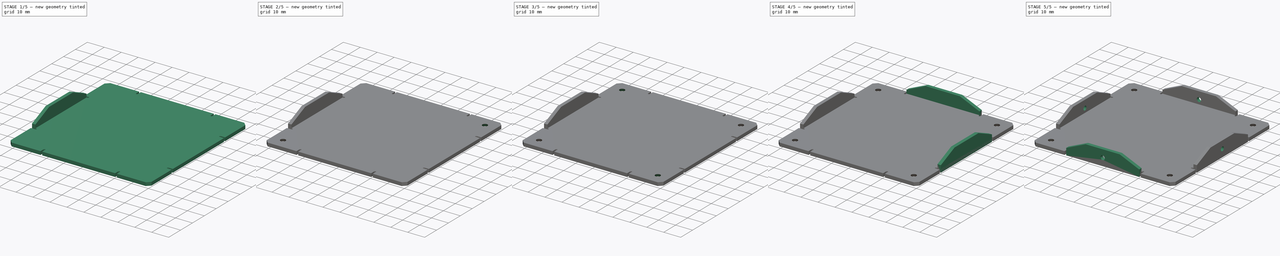
[diagram: build sequence overview — one tinted view per stage of 5, left to right]
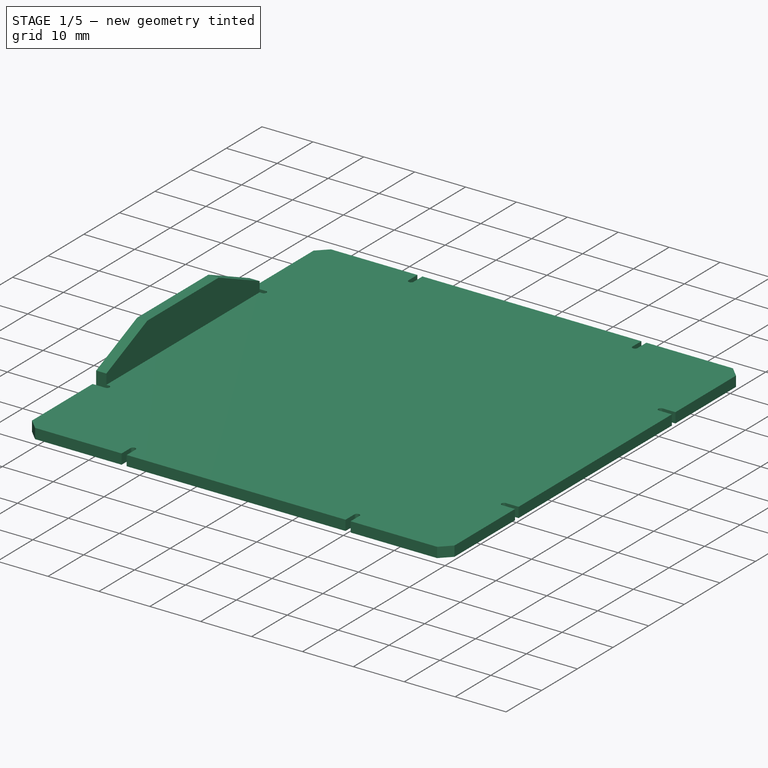
[diagram: stage 1 of 5 — iso view after this stage's code; geometry added in this stage tinted green]
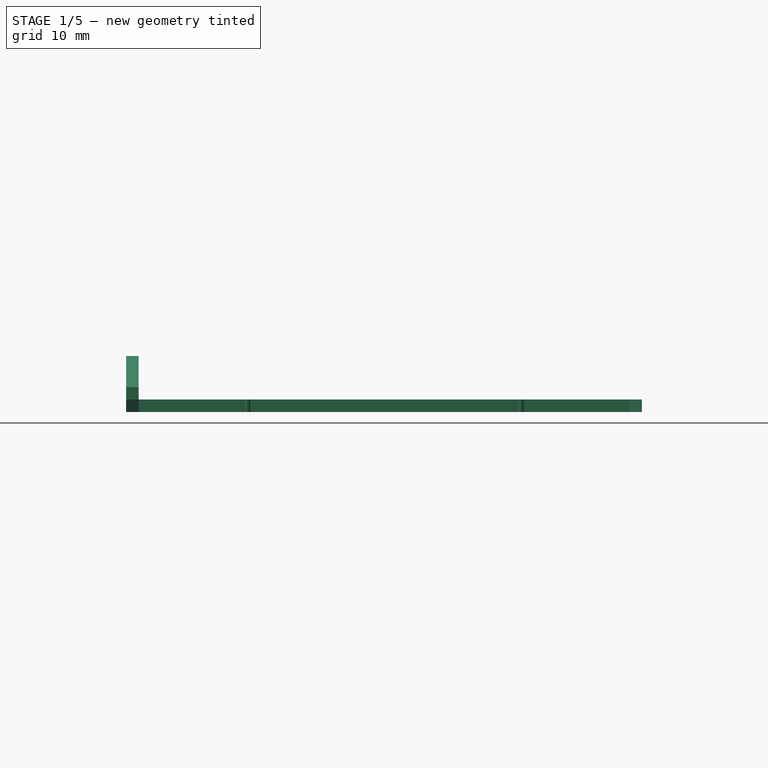
[diagram: stage 1 of 5 — front view after this stage's code; geometry added in this stage tinted green]
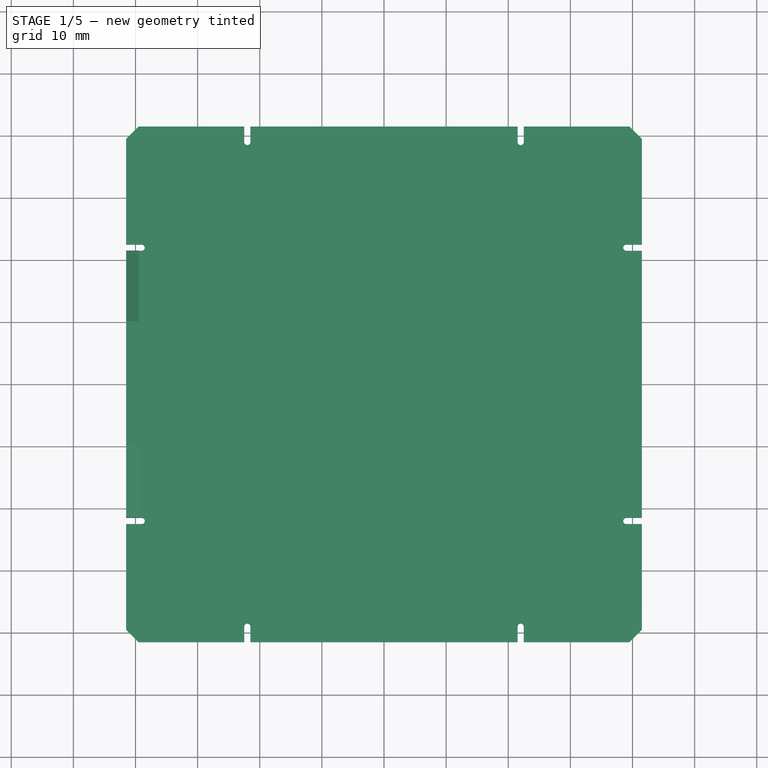
[diagram: stage 1 of 5 — top view after this stage's code; geometry added in this stage tinted green]
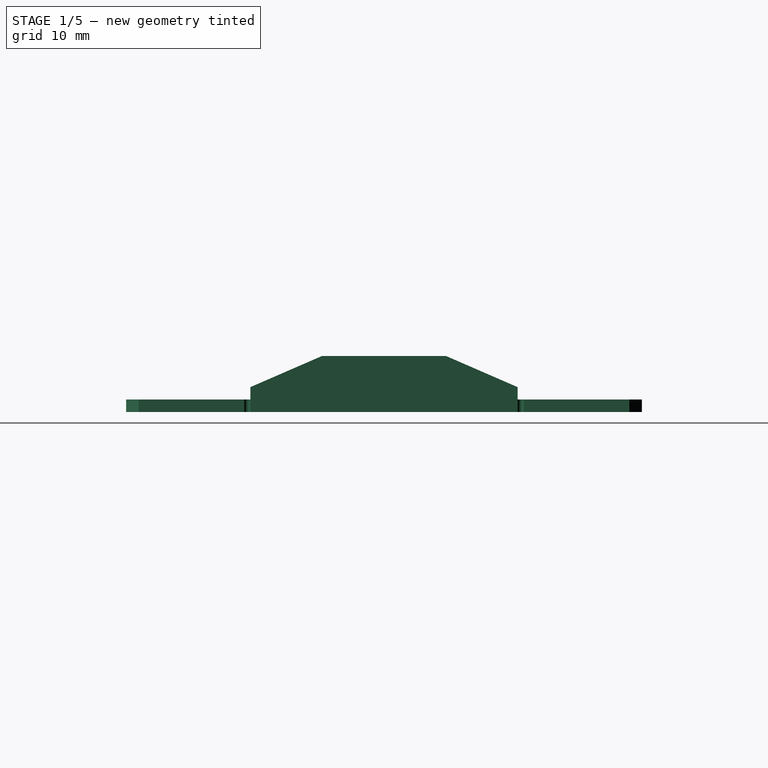
[diagram: stage 1 of 5 — right view after this stage's code; geometry added in this stage tinted green]
FCSTD DOCUMENT  (FreeCAD 0.16R6710 (Git))
Label: tapa
License: All rights reserved
LicenseURL: http://en.wikipedia.org/wiki/All_rights_reserved
objects: Sketcher::SketchObject×15, PartDesign::Pad×5, Part::Loft×4, Part::Cut×4, Part::MultiFuse×2, PartDesign::Pocket×2, PartDesign::Chamfer×1
note: 40 computed .brp shape members not serialized (recipe doc carries the construction recipe); baked Part::Feature solids carry a one-line shape summary decoded from their .brp

FEATURE [Sketcher::SketchObject] Sketch
  sketch-geometry (36):
    g0: LineSegment StartX=21.5 StartY=-41.5 StartZ=0 EndX=-21.5 EndY=-41.5 EndZ=0
    g1: LineSegment StartX=-41.5 StartY=-41.5 StartZ=0 EndX=-41.5 EndY=-22.5 EndZ=0
    g2: ArcOfCircle CenterX=-22 CenterY=-39 CenterZ=0 NormalX=0 NormalY=0 NormalZ=1 Radius=0.5 StartAngle=6.28319 EndAngle=9.42478
    g3: LineSegment StartX=-21.5 StartY=-39 StartZ=0 EndX=-21.5 EndY=-41.5 EndZ=0
    g4: LineSegment StartX=-22.5 StartY=-41.5 StartZ=0 EndX=-22.5 EndY=-39 EndZ=0
    g5: LineSegment StartX=-22.5 StartY=-41.5 StartZ=0 EndX=-41.5 EndY=-41.5 EndZ=0
    g6: ArcOfCircle CenterX=-39 CenterY=-22 CenterZ=0 NormalX=0 NormalY=0 NormalZ=1 Radius=0.5 StartAngle=4.71239 EndAngle=7.85398
    g7: LineSegment StartX=-41.5 StartY=-21.5 StartZ=0 EndX=-39 EndY=-21.5 EndZ=0
    g8: LineSegment StartX=-39 StartY=-22.5 StartZ=0 EndX=-41.5 EndY=-22.5 EndZ=0
    g9: LineSegment StartX=-41.5 StartY=-21.5 StartZ=0 EndX=-41.5 EndY=21.5 EndZ=0
    g10: ArcOfCircle CenterX=22 CenterY=-39 CenterZ=0 NormalX=0 NormalY=0 NormalZ=1 Radius=0.5 StartAngle=6.28319 EndAngle=9.42478
    g11: LineSegment StartX=21.5 StartY=-39 StartZ=0 EndX=21.5 EndY=-41.5 EndZ=0
    g12: LineSegment StartX=22.5 StartY=-41.5 StartZ=0 EndX=22.5 EndY=-39 EndZ=0
    g13: LineSegment StartX=22.5 StartY=-41.5 StartZ=0 EndX=41.5 EndY=-41.5 EndZ=0
    g14: LineSegment StartX=-41.5 StartY=41.5 StartZ=0 EndX=-41.5 EndY=22.5 EndZ=0
    g15: ArcOfCircle CenterX=-39 CenterY=22 CenterZ=0 NormalX=0 NormalY=0 NormalZ=1 Radius=0.5 StartAngle=4.71239 EndAngle=7.85399
    g16: LineSegment StartX=-41.5 StartY=21.5 StartZ=0 EndX=-39 EndY=21.5 EndZ=0
    g17: LineSegment StartX=-39 StartY=22.5 StartZ=0 EndX=-41.5 EndY=22.5 EndZ=0
    g18: LineSegment StartX=21.5 StartY=41.5 StartZ=0 EndX=-21.5 EndY=41.5 EndZ=0
    g19: ArcOfCircle CenterX=-22 CenterY=39 CenterZ=0 NormalX=0 NormalY=0 NormalZ=1 Radius=0.5 StartAngle=3.14159 EndAngle=6.28319
    g20: LineSegment StartX=-21.5 StartY=39 StartZ=0 EndX=-21.5 EndY=41.5 EndZ=0
    g21: LineSegment StartX=-22.5 StartY=41.5 StartZ=0 EndX=-22.5 EndY=39 EndZ=0
    g22: LineSegment StartX=-22.5 StartY=41.5 StartZ=0 EndX=-41.5 EndY=41.5 EndZ=0
    g23: ArcOfCircle CenterX=22 CenterY=39 CenterZ=0 NormalX=0 NormalY=0 NormalZ=1 Radius=0.5 StartAngle=3.14159 EndAngle=6.28319
    g24: LineSegment StartX=21.5 StartY=39 StartZ=0 EndX=21.5 EndY=41.5 EndZ=0
    g25: LineSegment StartX=22.5 StartY=41.5 StartZ=0 EndX=22.5 EndY=39 EndZ=0
    g26: LineSegment StartX=22.5 StartY=41.5 StartZ=0 EndX=41.5 EndY=41.5 EndZ=0
    g27: LineSegment StartX=41.5 StartY=-41.5 StartZ=0 EndX=41.5 EndY=-22.5 EndZ=0
    g28: ArcOfCircle CenterX=39 CenterY=-22 CenterZ=0 NormalX=0 NormalY=0 NormalZ=1 Radius=0.5 StartAngle=1.5708 EndAngle=4.71238
    g29: LineSegment StartX=41.5 StartY=-21.5 StartZ=0 EndX=39 EndY=-21.5 EndZ=0
    g30: LineSegment StartX=39 StartY=-22.5 StartZ=0 EndX=41.5 EndY=-22.5 EndZ=0
    g31: LineSegment StartX=41.5 StartY=-21.5 StartZ=0 EndX=41.5 EndY=21.5 EndZ=0
    g32: LineSegment StartX=41.5 StartY=41.5 StartZ=0 EndX=41.5 EndY=22.5 EndZ=0
    g33: ArcOfCircle CenterX=39 CenterY=22 CenterZ=0 NormalX=0 NormalY=0 NormalZ=1 Radius=0.5 StartAngle=1.57079 EndAngle=4.7124
    g34: LineSegment StartX=41.5 StartY=21.5 StartZ=0 EndX=39 EndY=21.5 EndZ=0
    g35: LineSegment StartX=39 StartY=22.5 StartZ=0 EndX=41.5 EndY=22.5 EndZ=0
  constraints (110):
    c: Horizontal(g0)
    c: Vertical(g1)
    c: Vertical(g3)
    c: Vertical(g4)
    c: Radius(g2) = 0.5
    c: DistanceY(g3,g3) = 2.5
    c: DistanceY(g4,g4) = 2.5
    c: Horizontal(g7)
    c: Horizontal(g8)
    c: Radius(g6) = 0.5
    c: DistanceX(g8,g8) = 2.5
    c: DistanceX(g7,g7) = 2.5
    c: Coincident(g6,g7)
    c: Coincident(g6,g8)
    c: Vertical(g11)
    c: Vertical(g12)
    c: Radius(g10) = 0.5
    c: Vertical(g14)
    c: Horizontal(g16)
    c: Horizontal(g17)
    c: Radius(g15) = 0.5
    c: Coincident(g15,g16)
    c: Coincident(g15,g17)
    c: DistanceX(g5,g5) = 19
    c: DistanceX(g4,g0) = 1
    c: DistanceX(g13,g13) = 19
    c: DistanceX(g11,g12) = 1
    c: Coincident(g0,g11)
    c: DistanceX(g0,g0) = 43
    c: DistanceY(g1,g1) = 19
    c: Coincident(g1,g8)
    c: Coincident(g7,g9)
    c: DistanceY(g1,g7) = 1
    c: DistanceY(g14,g14) = 19
    c: DistanceY(g16,g14) = 1
    c: DistanceX(g17,g17) = 2.5
    c: DistanceX(g16,g16) = 2.5
    c: Coincident(g14,g17)
    c: Coincident(g16,g9)
    c: Vertical(g9)
    c: Horizontal(g5)
    c: Horizontal(g13)
    c: DistanceY(g9,g9) = 43
    c: DistanceY(g12,g12) = 2.5
    c: DistanceY(g11,g11) = 2.5
    c: Coincident(g4,g5)
    c: Coincident(g12,g13)
    c: Horizontal(g18)
    c: Vertical(g20)
    c: Vertical(g21)
    c: Radius(g19) = 0.5
    c: Vertical(g24)
    c: Vertical(g25)
    c: Radius(g23) = 0.5
    c: Coincident(g18,g24)
    c: Horizontal(g22)
    c: Horizontal(g26)
    c: Coincident(g21,g22)
    c: Coincident(g25,g26)
    c: DistanceX(g22,g22) = 19
    c: Coincident(g18,g20)
    c: DistanceX(g21,g18) = 1
    c: DistanceX(g26,g26) = 19
    c: DistanceX(g18,g25) = 1
    c: DistanceX(g18,g18) = 43
    c: Equal(g25,g24)
    c: Coincident(g23,g25)
    c: Coincident(g23,g24)
    c: DistanceY(g25,g25) = 2.5
    c: Equal(g20,g21)
    c: DistanceY(g20,g20) = 2.5
    c: Coincident(g19,g20)
    c: Coincident(g19,g21)
    c: Vertical(g27)
    c: Horizontal(g29)
    c: Horizontal(g30)
    c: Radius(g28) = 0.5
    c: Coincident(g28,g29)
    c: Coincident(g28,g30)
    c: Vertical(g32)
    c: Horizontal(g34)
    c: Horizontal(g35)
    c: Radius(g33) = 0.5
    c: Coincident(g33,g34)
    c: Coincident(g33,g35)
    c: Coincident(g27,g30)
    c: Coincident(g29,g31)
    c: Coincident(g32,g35)
    c: Coincident(g34,g31)
    c: Vertical(g31)
    c: DistanceY(g27,g27) = 19
    c: DistanceY(g27,g29) = 1
    c: Equal(g29,g30)
    c: DistanceX(g30,g30) = 2.5
    c: DistanceY(g31,g31) = 43
    c: DistanceY(g32,g32) = 19
    c: DistanceY(g31,g32) = 1
    c: Equal(g34,g35)
    c: DistanceX(g34,g34) = 2.5
    c: Coincident(g2,g4)
    c: Coincident(g2,g3)
    c: Coincident(g1,g5)
    c: Coincident(g0,g3)
    c: Coincident(g14,g22)
    c: Coincident(g26,g32)
    c: Coincident(g13,g27)
    c: Coincident(g10,g11)
    c: Coincident(g10,g12)
    c: Symmetric(g9,g31,g-2)
    c: Symmetric(g0,g18,g-1)
FEATURE [PartDesign::Pad] Pad
  Length = 2
  Length2 = 100
  Sketch = -> Sketch
  Type = 0
FEATURE [PartDesign::Chamfer] Chamfer
  Base = -> Pad [Edge23,Edge50,Edge104,Edge77]
  Size = 2
FEATURE [Sketcher::SketchObject] Sketch001
  sketch-geometry (1):
    g0: Circle CenterX=-35 CenterY=-35 CenterZ=0 NormalX=0 NormalY=0 NormalZ=1 Radius=3
  constraints (1):
    c: Radius(g0) = 3
FEATURE [Sketcher::SketchObject] Sketch002
  Placement = pos=(0,0,2) rot=(0,0,1;0rad)
  sketch-geometry (1):
    g0: Circle CenterX=-35 CenterY=-35 CenterZ=0 NormalX=0 NormalY=0 NormalZ=1 Radius=1.5
  constraints (3):
    c: Radius(g0) = 1.5
    c: DistanceY(g0,g-1) = 35
    c: DistanceX(g0,g-1) = 35
FEATURE [Part::Loft] Loft
  Closed = false
  Ruled = true
  Sections = -> [Sketch001,Sketch002]
  Solid = true
FEATURE [PartDesign::Pad] Pad004
  Length = 2
  Length2 = 100
  Placement = pos=(-41.5,0,0) rot=(0.57735,0.57735,0.57735;2.0944rad)
  Sketch = -> Sketch012
  Type = 0
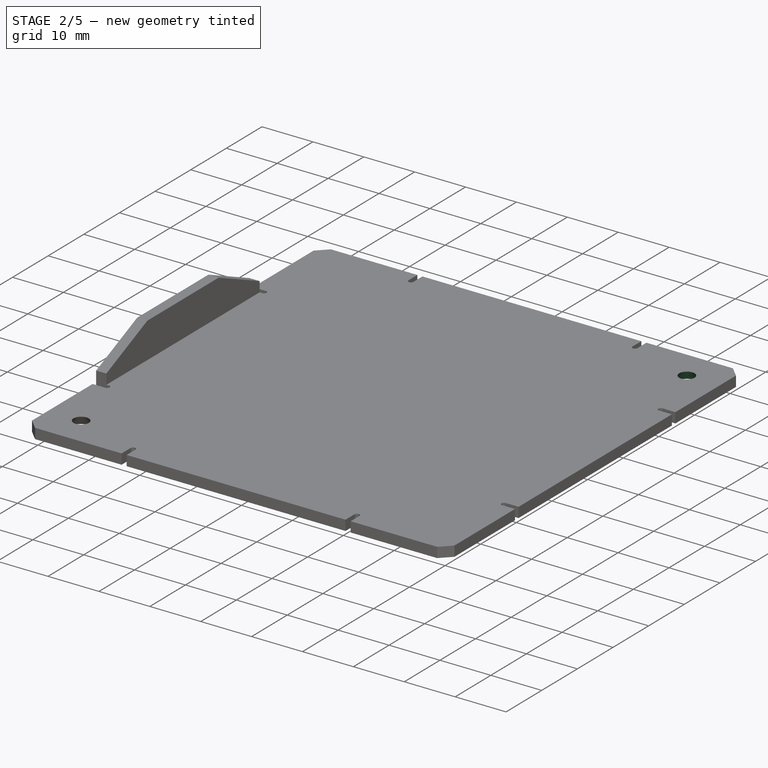
[diagram: stage 2 of 5 — iso view after this stage's code; geometry added in this stage tinted green]
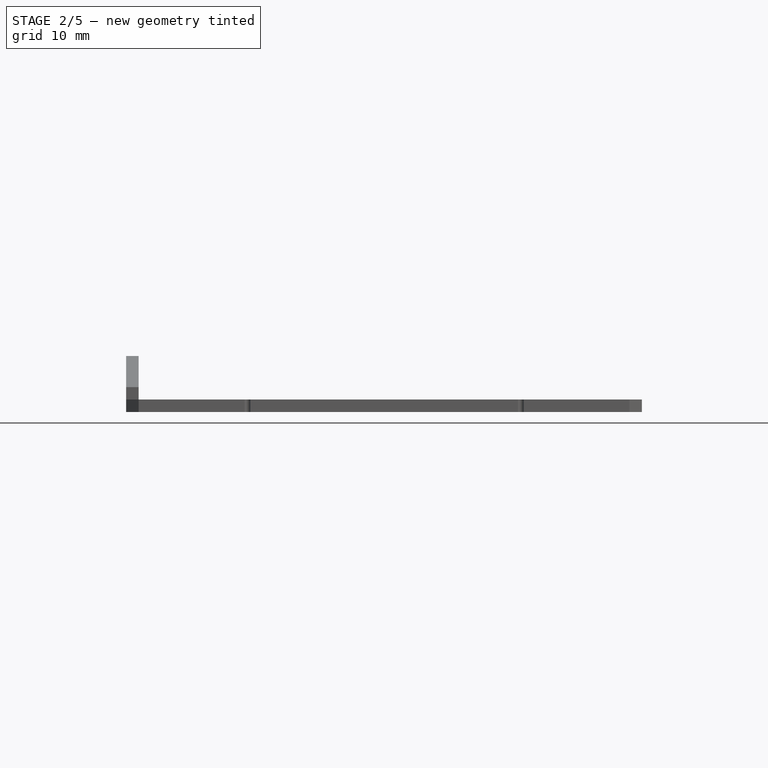
[diagram: stage 2 of 5 — front view after this stage's code; geometry added in this stage tinted green]
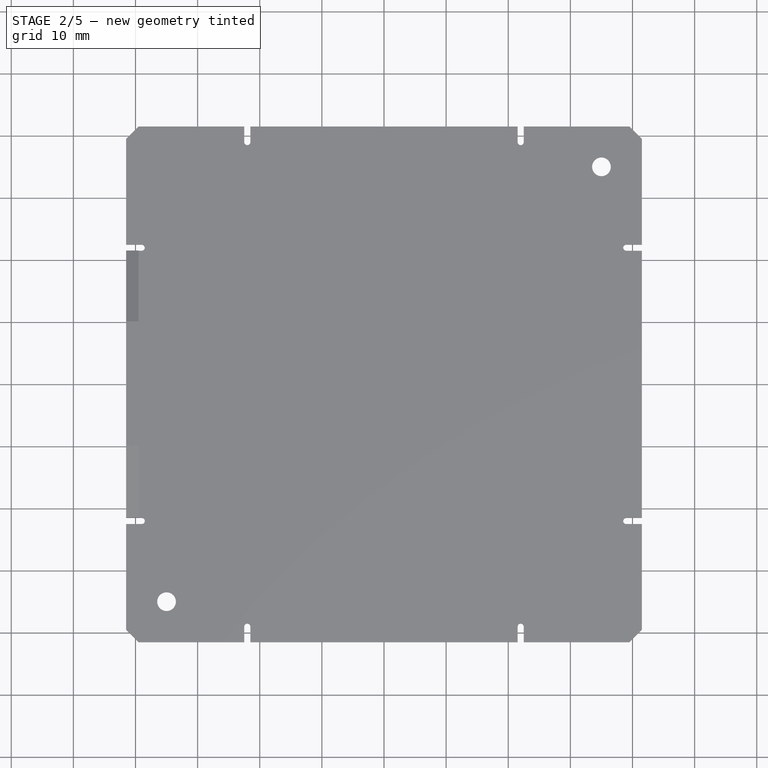
[diagram: stage 2 of 5 — top view after this stage's code; geometry added in this stage tinted green]
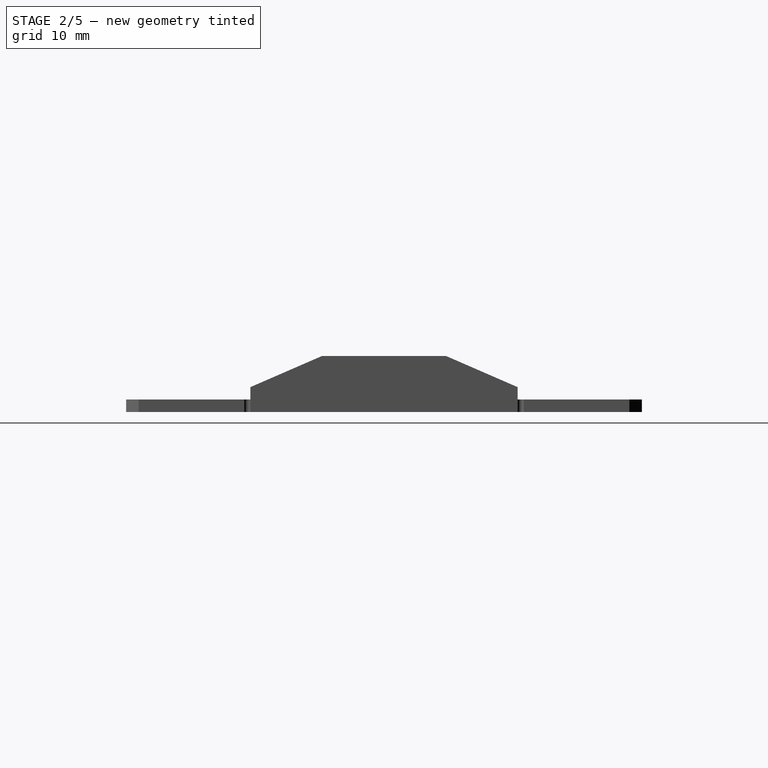
[diagram: stage 2 of 5 — right view after this stage's code; geometry added in this stage tinted green]
FEATURE [Sketcher::SketchObject] Sketch007
  sketch-geometry (1):
    g0: Circle CenterX=35 CenterY=35 CenterZ=0 NormalX=0 NormalY=0 NormalZ=1 Radius=3
  constraints (3):
    c: Radius(g0) = 3
    c: DistanceY(g-1,g0) = 35
    c: DistanceX(g-1,g0) = 35
FEATURE [Sketcher::SketchObject] Sketch008
  Placement = pos=(0,0,2) rot=(0,0,1;0rad)
  sketch-geometry (1):
    g0: Circle CenterX=35 CenterY=35 CenterZ=0 NormalX=0 NormalY=0 NormalZ=1 Radius=1.5
  constraints (3):
    c: Radius(g0) = 1.5
    c: DistanceX(g-1,g0) = 35
    c: DistanceY(g-1,g0) = 35
FEATURE [Part::Loft] Loft003
  Closed = false
  Ruled = true
  Sections = -> [Sketch007,Sketch008]
  Solid = true
FEATURE [Part::Cut] Cut
  Base = -> Chamfer
  Tool = -> Loft
FEATURE [Part::Cut] Cut001
  Base = -> Cut
  Tool = -> Loft003
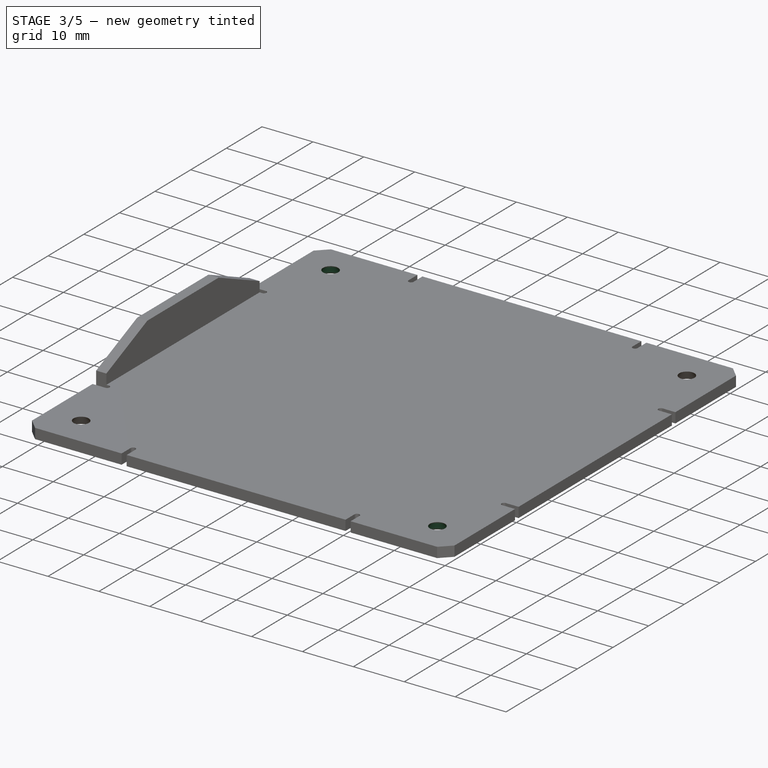
[diagram: stage 3 of 5 — iso view after this stage's code; geometry added in this stage tinted green]
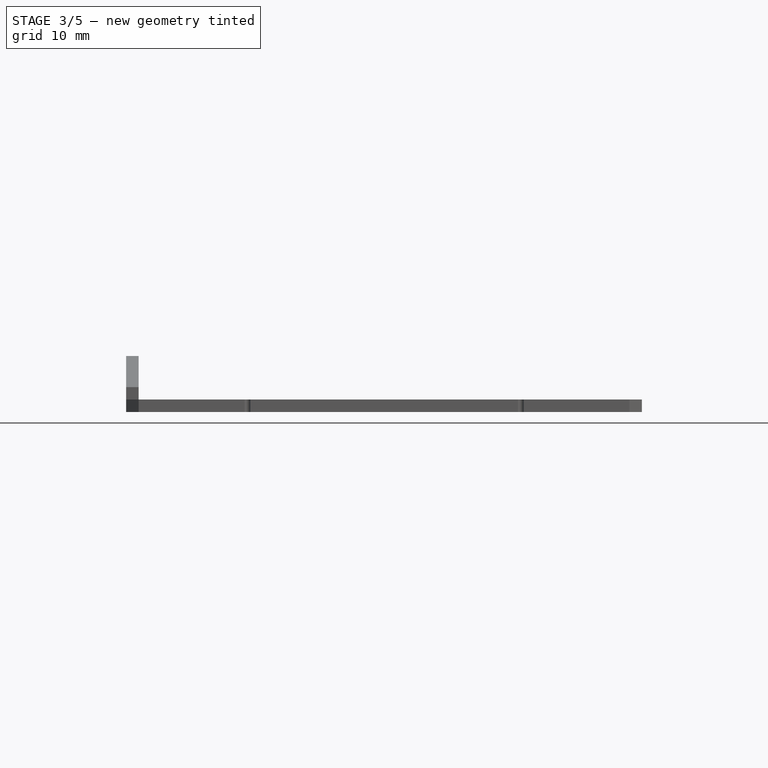
[diagram: stage 3 of 5 — front view after this stage's code; geometry added in this stage tinted green]
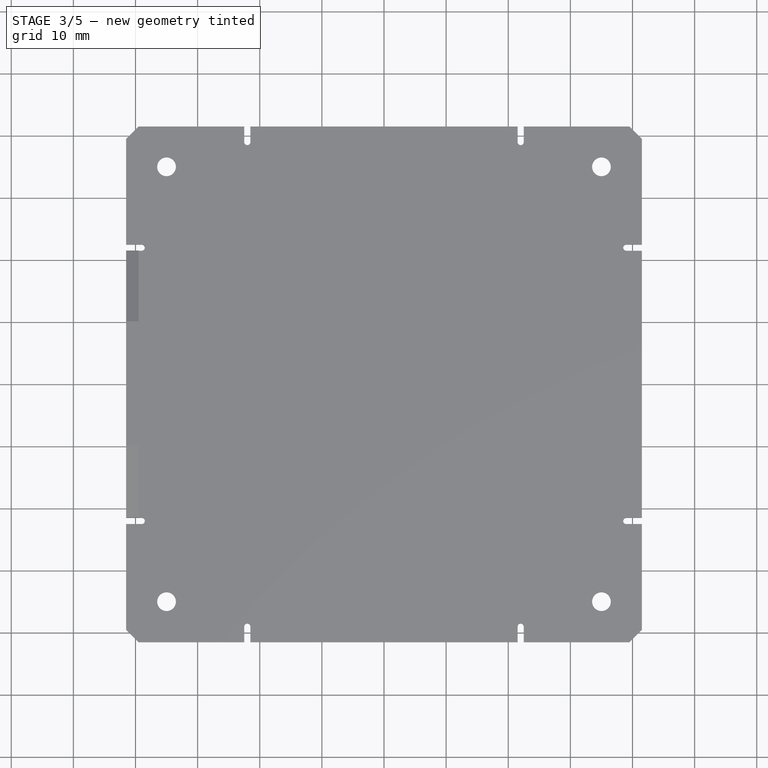
[diagram: stage 3 of 5 — top view after this stage's code; geometry added in this stage tinted green]
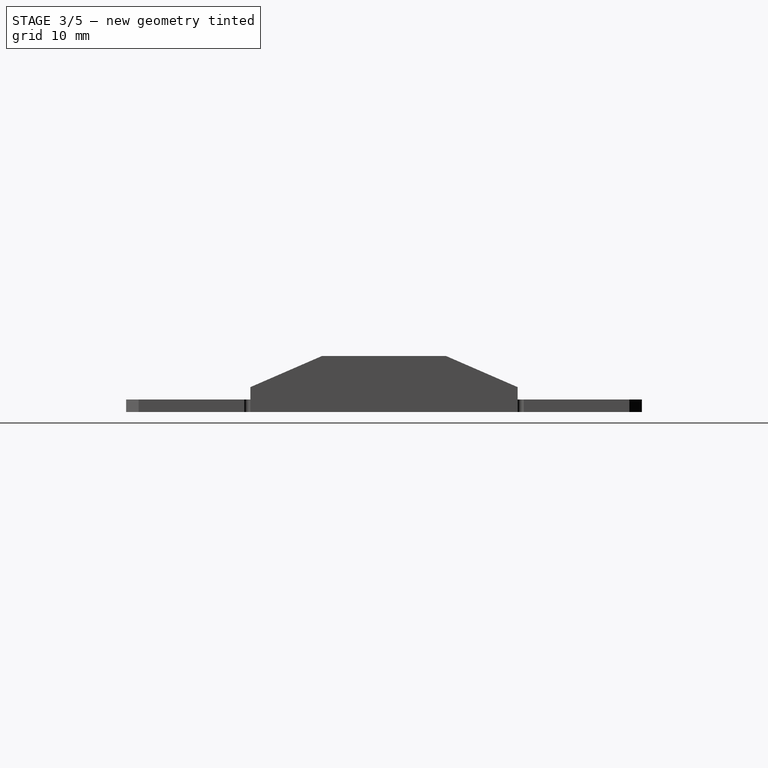
[diagram: stage 3 of 5 — right view after this stage's code; geometry added in this stage tinted green]
FEATURE [Sketcher::SketchObject] Sketch003
  sketch-geometry (1):
    g0: Circle CenterX=35 CenterY=-35 CenterZ=0 NormalX=0 NormalY=0 NormalZ=1 Radius=3
  constraints (3):
    c: Radius(g0) = 3
    c: DistanceX(g-1,g0) = 35
    c: DistanceY(g0,g-1) = 35
FEATURE [Sketcher::SketchObject] Sketch004
  Placement = pos=(0,0,2) rot=(0,0,1;0rad)
  sketch-geometry (1):
    g0: Circle CenterX=35 CenterY=-35 CenterZ=0 NormalX=0 NormalY=0 NormalZ=1 Radius=1.5
  constraints (3):
    c: Radius(g0) = 1.5
    c: DistanceX(g-1,g0) = 35
    c: DistanceY(g0,g-1) = 35
FEATURE [Part::Loft] Loft001
  Closed = false
  Ruled = true
  Sections = -> [Sketch003,Sketch004]
  Solid = true
FEATURE [Sketcher::SketchObject] Sketch005
  sketch-geometry (1):
    g0: Circle CenterX=-35 CenterY=35 CenterZ=0 NormalX=0 NormalY=0 NormalZ=1 Radius=3
  constraints (3):
    c: Radius(g0) = 3
    c: DistanceY(g-1,g0) = 35
    c: DistanceX(g0,g-1) = 35
FEATURE [Sketcher::SketchObject] Sketch006
  Placement = pos=(0,0,2) rot=(0,0,1;0rad)
  sketch-geometry (1):
    g0: Circle CenterX=-35 CenterY=35 CenterZ=0 NormalX=0 NormalY=0 NormalZ=1 Radius=1.5
  constraints (3):
    c: Radius(g0) = 1.5
    c: DistanceY(g-1,g0) = 35
    c: DistanceX(g0,g-1) = 35
FEATURE [Part::Loft] Loft002
  Closed = false
  Ruled = true
  Sections = -> [Sketch005,Sketch006]
  Solid = true
FEATURE [Part::Cut] Cut002
  Base = -> Cut001
  Tool = -> Loft002
FEATURE [Part::Cut] Cut003
  Base = -> Cut002
  Tool = -> Loft001
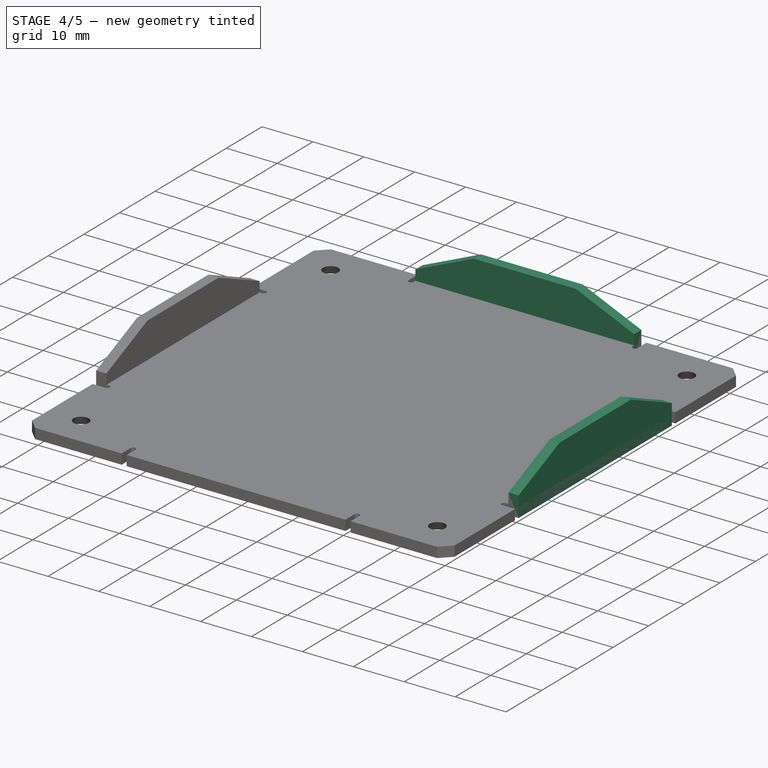
[diagram: stage 4 of 5 — iso view after this stage's code; geometry added in this stage tinted green]
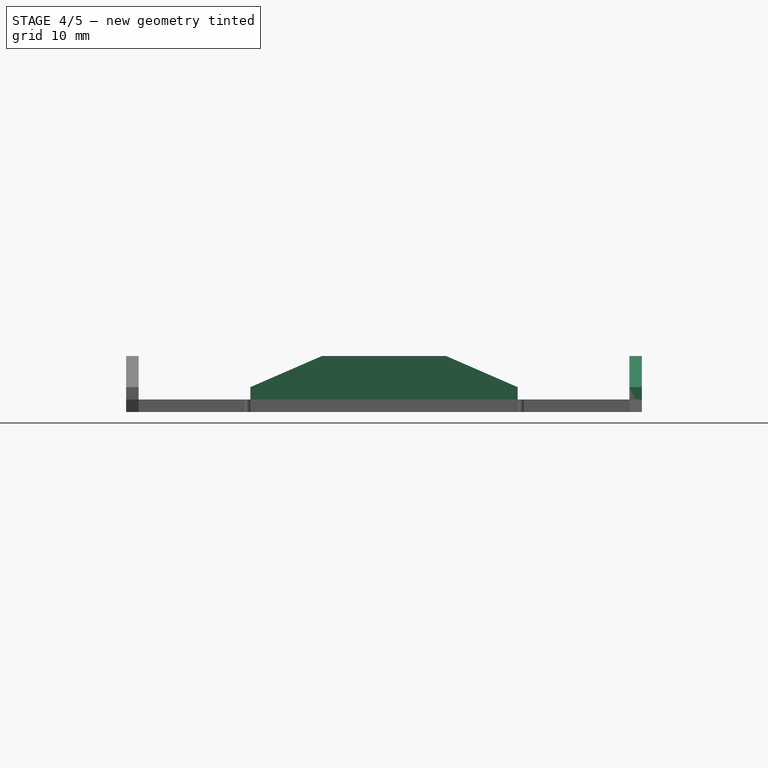
[diagram: stage 4 of 5 — front view after this stage's code; geometry added in this stage tinted green]
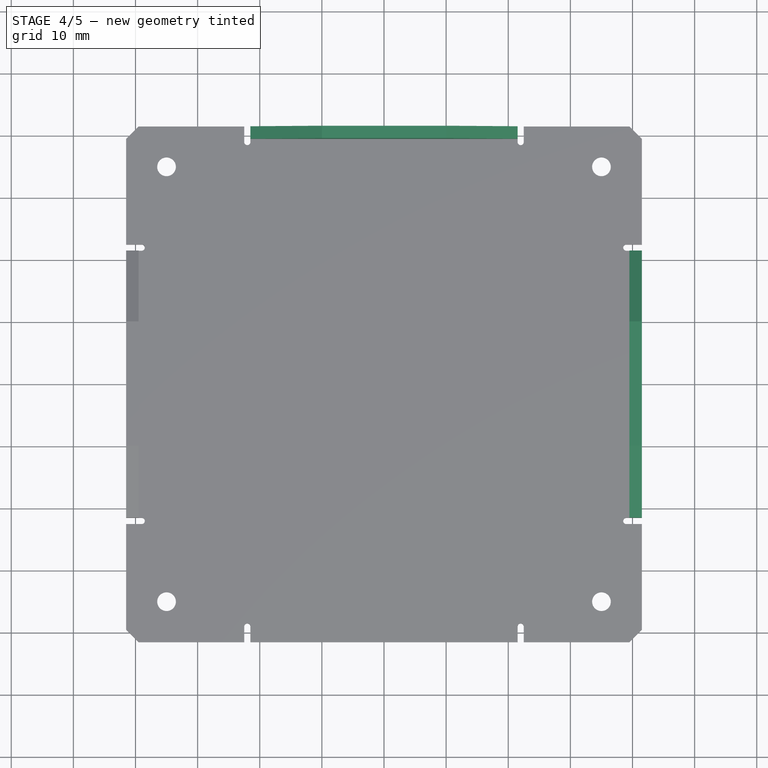
[diagram: stage 4 of 5 — top view after this stage's code; geometry added in this stage tinted green]
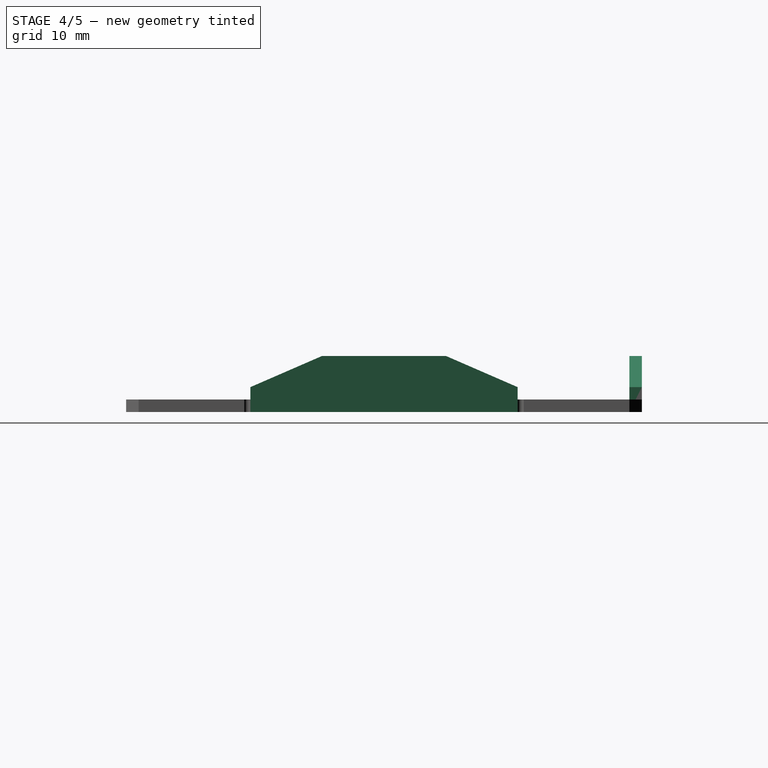
[diagram: stage 4 of 5 — right view after this stage's code; geometry added in this stage tinted green]
FEATURE [PartDesign::Pad] Pad002
  Length = 2
  Length2 = 100
  Placement = pos=(0,41.5,0) rot=(1,0,0;1.5708rad)
  Sketch = -> Sketch010
  Type = 0
FEATURE [Sketcher::SketchObject] Sketch011
  Placement = pos=(39.5,0,0) rot=(0.57735,0.57735,0.57735;2.0944rad)
  sketch-geometry (6):
    g0: LineSegment StartX=-21.5 StartY=0 StartZ=0 EndX=21.5 EndY=0 EndZ=0
    g1: LineSegment StartX=21.5 StartY=0 StartZ=0 EndX=21.5 EndY=4 EndZ=0
    g2: LineSegment StartX=21.5 StartY=4 StartZ=0 EndX=10 EndY=9 EndZ=0
    g3: LineSegment StartX=10 StartY=9 StartZ=0 EndX=-10 EndY=9 EndZ=0
    g4: LineSegment StartX=-10 StartY=9 StartZ=0 EndX=-21.5 EndY=4 EndZ=0
    g5: LineSegment StartX=-21.5 StartY=4 StartZ=0 EndX=-21.5 EndY=0 EndZ=0
  constraints (18):
    c: Horizontal(g0)
    c: Coincident(g0,g1)
    c: Vertical(g1)
    c: Coincident(g1,g2)
    c: Coincident(g2,g3)
    c: Horizontal(g3)
    c: Coincident(g3,g4)
    c: Coincident(g4,g5)
    c: Coincident(g5,g0)
    c: Vertical(g5)
    c: Equal(g1,g5)
    c: DistanceY(g1,g1) = 4
    c: Symmetric(g0,g0,g-2)
    c: Symmetric(g2,g3,g-2)
    c: DistanceY(g0,g2) = 9
    c: DistanceX(g-1,g2) = 10
    c: DistanceX(g-1,g0) = 21.5
    c: PointOnObject(g0,g-1)
FEATURE [Sketcher::SketchObject] Sketch012
  Placement = pos=(-41.5,0,0) rot=(0.57735,0.57735,0.57735;2.0944rad)
  sketch-geometry (6):
    g0: LineSegment StartX=-21.5 StartY=0 StartZ=0 EndX=21.5 EndY=0 EndZ=0
    g1: LineSegment StartX=21.5 StartY=0 StartZ=0 EndX=21.5 EndY=4 EndZ=0
    g2: LineSegment StartX=21.5 StartY=4 StartZ=0 EndX=10 EndY=9 EndZ=0
    g3: LineSegment StartX=10 StartY=9 StartZ=0 EndX=-10 EndY=9 EndZ=0
    g4: LineSegment StartX=-10 StartY=9 StartZ=0 EndX=-21.5 EndY=4 EndZ=0
    g5: LineSegment StartX=-21.5 StartY=4 StartZ=0 EndX=-21.5 EndY=0 EndZ=0
  constraints (18):
    c: Horizontal(g0)
    c: Coincident(g0,g1)
    c: Vertical(g1)
    c: Coincident(g1,g2)
    c: Coincident(g2,g3)
    c: Horizontal(g3)
    c: Coincident(g3,g4)
    c: Coincident(g4,g5)
    c: Coincident(g5,g0)
    c: Vertical(g5)
    c: Equal(g1,g5)
    c: DistanceY(g1,g1) = 4
    c: Symmetric(g0,g0,g-2)
    c: Symmetric(g2,g3,g-2)
    c: DistanceY(g0,g2) = 9
    c: DistanceX(g-1,g2) = 10
    c: DistanceX(g-1,g0) = 21.5
    c: PointOnObject(g0,g-1)
FEATURE [PartDesign::Pad] Pad003
  Length = 2
  Length2 = 100
  Placement = pos=(39.5,0,0) rot=(0.57735,0.57735,0.57735;2.0944rad)
  Sketch = -> Sketch011
  Type = 0
FEATURE [Part::MultiFuse] Fusion
  Shapes = -> [Pad004,Cut003]
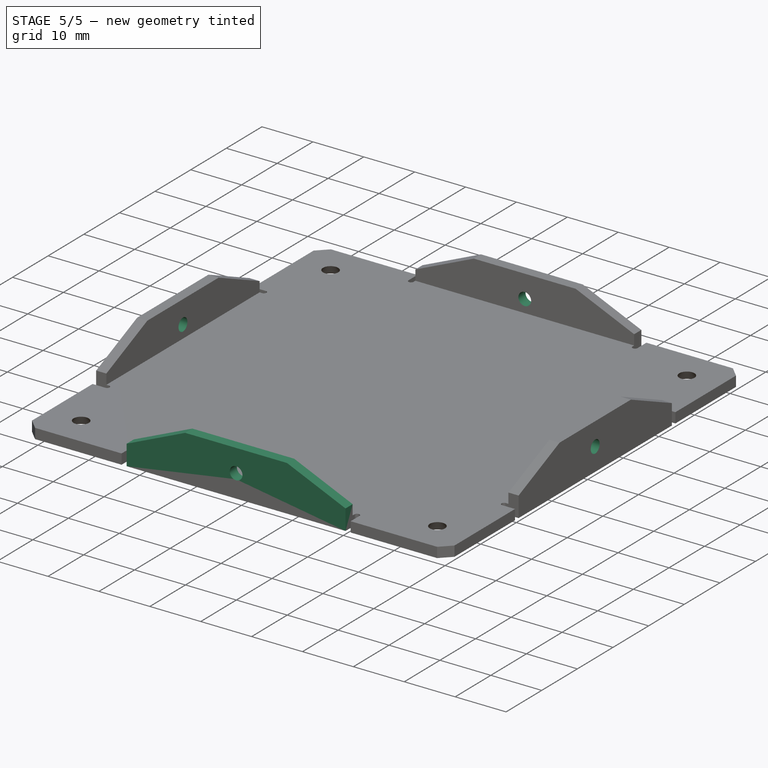
[diagram: stage 5 of 5 — iso view after this stage's code; geometry added in this stage tinted green]
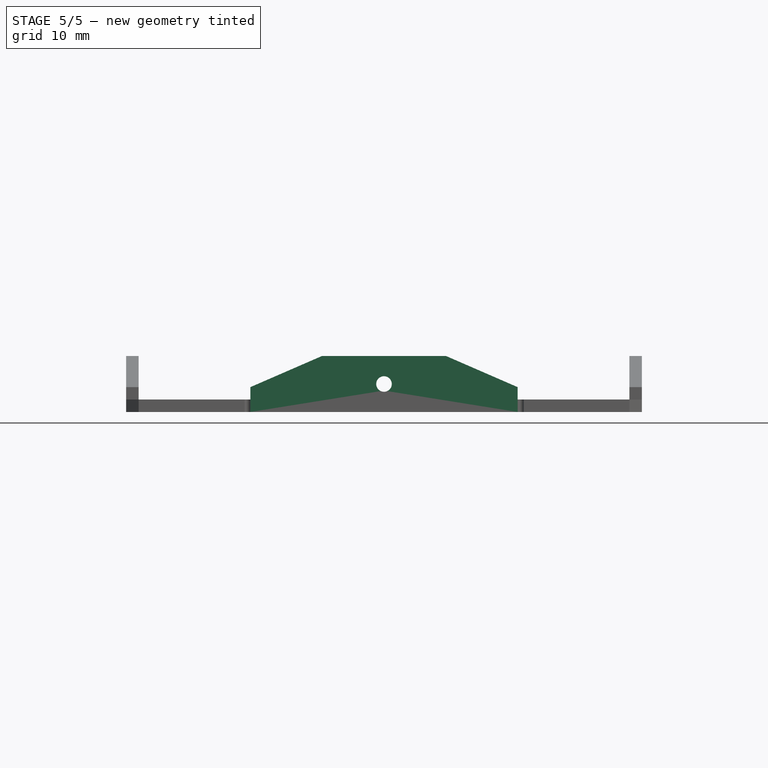
[diagram: stage 5 of 5 — front view after this stage's code; geometry added in this stage tinted green]
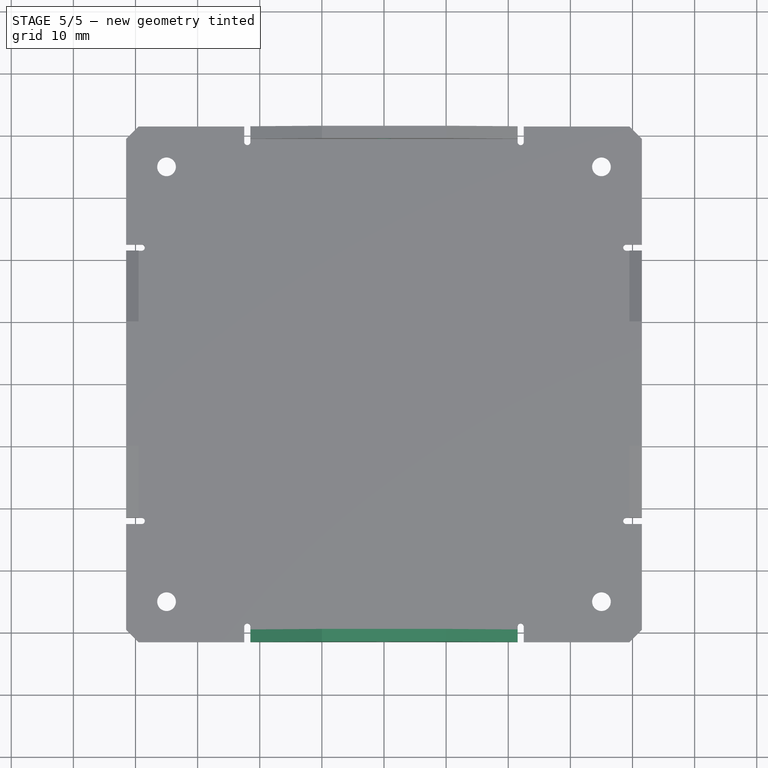
[diagram: stage 5 of 5 — top view after this stage's code; geometry added in this stage tinted green]
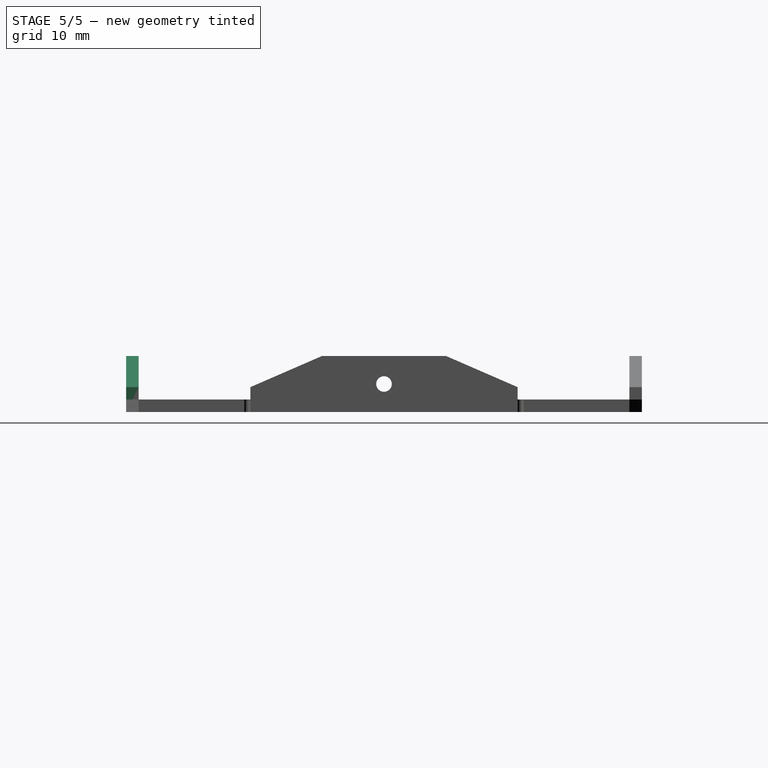
[diagram: stage 5 of 5 — right view after this stage's code; geometry added in this stage tinted green]
FEATURE [Sketcher::SketchObject] Sketch009
  Placement = pos=(0,-39.5,0) rot=(-1,0,0;4.71239rad)
  sketch-geometry (6):
    g0: LineSegment StartX=-21.5 StartY=0 StartZ=0 EndX=21.5 EndY=0 EndZ=0
    g1: LineSegment StartX=21.5 StartY=0 StartZ=0 EndX=21.5 EndY=4 EndZ=0
    g2: LineSegment StartX=21.5 StartY=4 StartZ=0 EndX=10 EndY=9 EndZ=0
    g3: LineSegment StartX=10 StartY=9 StartZ=0 EndX=-10 EndY=9 EndZ=0
    g4: LineSegment StartX=-10 StartY=9 StartZ=0 EndX=-21.5 EndY=4 EndZ=0
    g5: LineSegment StartX=-21.5 StartY=4 StartZ=0 EndX=-21.5 EndY=0 EndZ=0
  constraints (18):
    c: Horizontal(g0)
    c: Coincident(g0,g1)
    c: Vertical(g1)
    c: Coincident(g1,g2)
    c: Coincident(g2,g3)
    c: Horizontal(g3)
    c: Coincident(g3,g4)
    c: Coincident(g4,g5)
    c: Coincident(g5,g0)
    c: Vertical(g5)
    c: Equal(g5,g1)
    c: DistanceY(g1,g1) = 4
    c: DistanceY(g0,g2) = 9
    c: Symmetric(g0,g0,g-2)
    c: PointOnObject(g0,g-1)
    c: DistanceX(g-1,g2) = 10
    c: DistanceX(g-1,g0) = 21.5
    c: Symmetric(g3,g2,g-2)
FEATURE [Sketcher::SketchObject] Sketch010
  Placement = pos=(0,41.5,0) rot=(1,0,0;1.5708rad)
  sketch-geometry (6):
    g0: LineSegment StartX=-21.5 StartY=0 StartZ=0 EndX=21.5 EndY=0 EndZ=0
    g1: LineSegment StartX=21.5 StartY=0 StartZ=0 EndX=21.5 EndY=4 EndZ=0
    g2: LineSegment StartX=21.5 StartY=4 StartZ=0 EndX=10 EndY=9 EndZ=0
    g3: LineSegment StartX=10 StartY=9 StartZ=0 EndX=-10 EndY=9 EndZ=0
    g4: LineSegment StartX=-10 StartY=9 StartZ=0 EndX=-21.5 EndY=4 EndZ=0
    g5: LineSegment StartX=-21.5 StartY=4 StartZ=0 EndX=-21.5 EndY=0 EndZ=0
  constraints (18):
    c: Horizontal(g0)
    c: Coincident(g0,g1)
    c: Vertical(g1)
    c: Coincident(g1,g2)
    c: Coincident(g2,g3)
    c: Horizontal(g3)
    c: Coincident(g3,g4)
    c: Coincident(g4,g5)
    c: Coincident(g5,g0)
    c: Vertical(g5)
    c: Equal(g5,g1)
    c: DistanceY(g1,g1) = 4
    c: DistanceY(g0,g2) = 9
    c: Symmetric(g0,g0,g-2)
    c: PointOnObject(g0,g-1)
    c: DistanceX(g-1,g2) = 10
    c: DistanceX(g-1,g0) = 21.5
    c: Symmetric(g3,g2,g-2)
FEATURE [PartDesign::Pad] Pad001
  Length = 2
  Length2 = 100
  Placement = pos=(0,-39.5,0) rot=(-1,0,0;4.71239rad)
  Sketch = -> Sketch009
  Type = 0
FEATURE [Part::MultiFuse] Fusion001
  Shapes = -> [Pad002,Pad003,Fusion,Pad001]
FEATURE [Sketcher::SketchObject] Sketch013
  ExternalGeometry = -> [Fusion001]
  Placement = pos=(-3.3e-11,-41.5,-8.8e-11) rot=(1,0,0;1.5708rad)
  Support = -> Fusion001 [Face67]
  sketch-geometry (1):
    g0: Circle CenterX=0 CenterY=4.5 CenterZ=0 NormalX=0 NormalY=0 NormalZ=1 Radius=1.25
  constraints (3):
    c: Radius(g0) = 1.25
    c: PointOnObject(g0,g-2)
    c: DistanceY(g0,g-3) = 4.5
FEATURE [PartDesign::Pocket] Pocket
  Length = 5
  Sketch = -> Sketch013
  Type = 1
FEATURE [Sketcher::SketchObject] Sketch014
  ExternalGeometry = -> [Pocket]
  Placement = pos=(41.5,0,0) rot=(0.57735,0.57735,0.57735;2.0944rad)
  Support = -> Pocket [Face6]
  sketch-geometry (1):
    g0: Circle CenterX=0 CenterY=4.5 CenterZ=0 NormalX=0 NormalY=0 NormalZ=1 Radius=1.25
  constraints (3):
    c: PointOnObject(g0,g-2)
    c: Radius(g0) = 1.25
    c: DistanceY(g0,g-3) = 4.5
FEATURE [PartDesign::Pocket] Pocket001
  Length = 5
  Sketch = -> Sketch014
  Type = 1
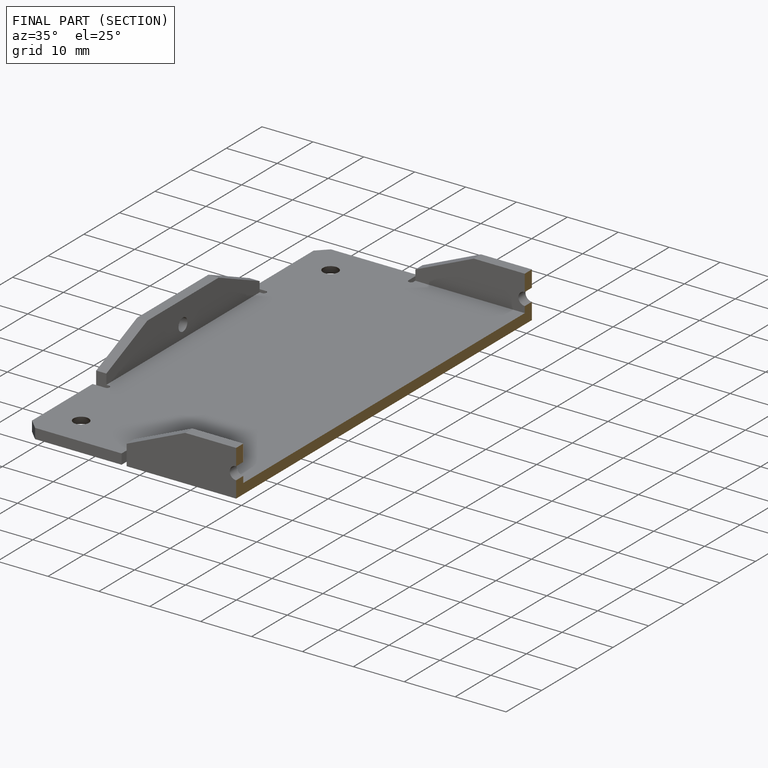
[diagram: finished part — half-section view (interior)]
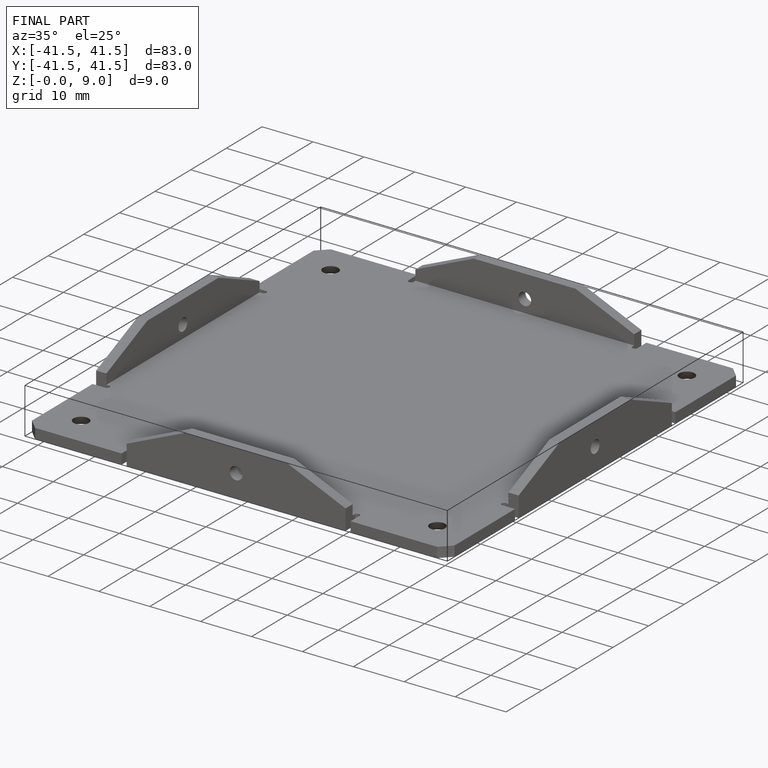
[diagram: finished part — iso view with bounding-box wireframe]
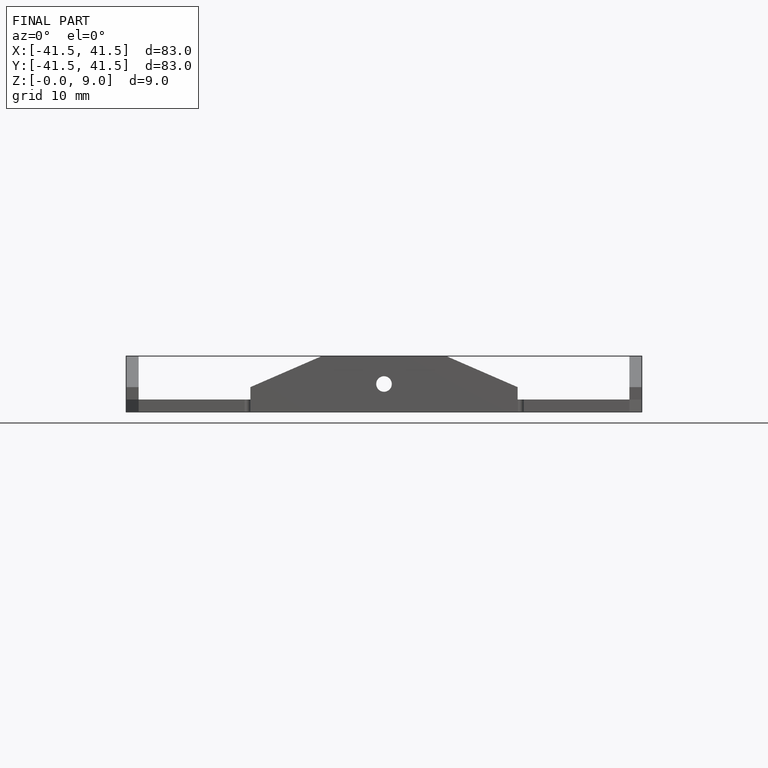
[diagram: finished part — front view with bounding-box wireframe]
